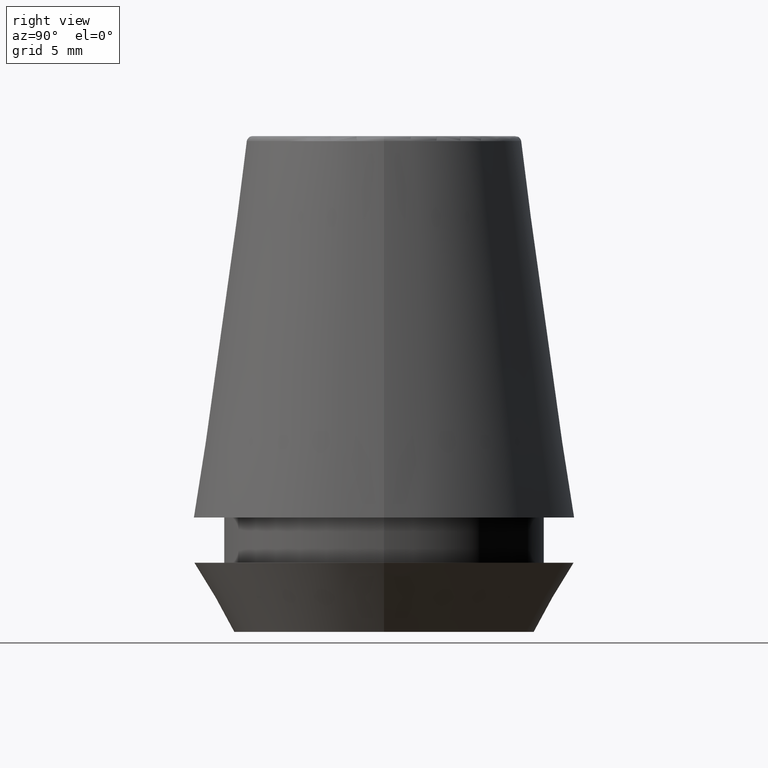
[diagram: clean part render]
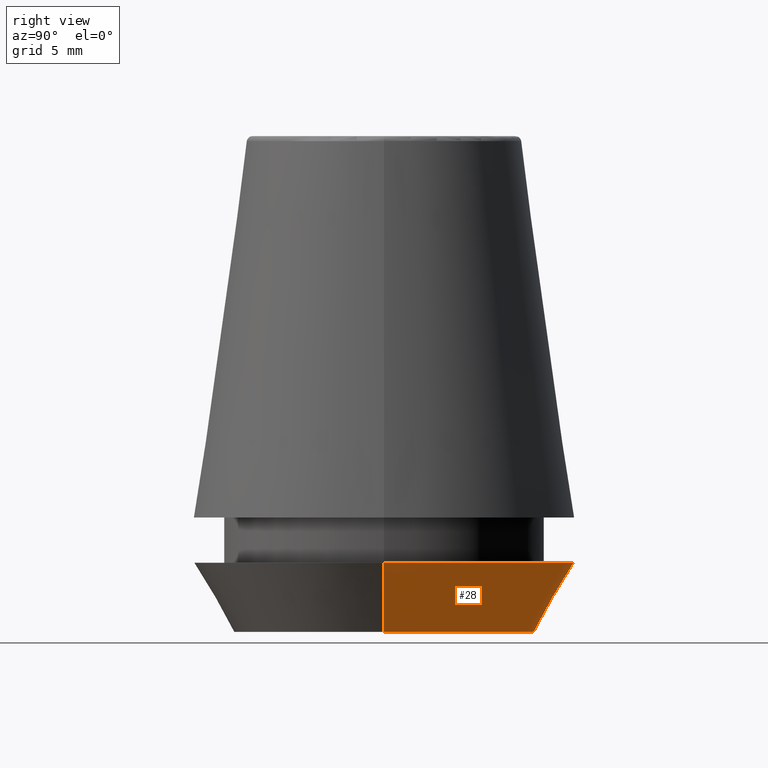
[diagram: same view with one face highlighted and labeled with its STEP entity id]
A machine part, right view. The second image highlights one B-rep face of the part: STEP entity #28.
In plain terms, the highlighted conical surface has half-angle 30 deg.
Its self-contained STEP definition (entity closure, byte-faithful):
#1 = CARTESIAN_POINT ( 'NONE',  ( -10.26217568973925200, 1.256754061072695800E-015, 0.0000000000000000000 ) ) ;
#6 = VERTEX_POINT ( 'NONE', #258 ) ;
#8 = LINE ( 'NONE', #23, #301 ) ;
#21 = CONICAL_SURFACE ( 'NONE', #262, 10.26217568973925200, 0.5235987755982940400 ) ;
#23 = CARTESIAN_POINT ( 'NONE',  ( 10.26217568973925200, 0.0000000000000000000, 0.0000000000000000000 ) ) ;
#28 = ADVANCED_FACE ( 'NONE', ( #367 ), #21, .T. ) ;
#41 = DIRECTION ( 'NONE',  ( 1.000000000000000000, 0.0000000000000000000, 0.0000000000000000000 ) ) ;
#45 = CARTESIAN_POINT ( 'NONE',  ( -10.26217568973925200, 1.424397449982127500E-015, 0.0000000000000000000 ) ) ;
#56 = AXIS2_PLACEMENT_3D ( 'NONE', #60, #351, #240 ) ;
#60 = CARTESIAN_POINT ( 'NONE',  ( 0.0000000000000000000, 0.0000000000000000000, 4.742050807568884500 ) ) ;
#68 = VERTEX_POINT ( 'NONE', #151 ) ;
#96 = DIRECTION ( 'NONE',  ( -0.4999999999999957800, 6.123233995736714300E-017, 0.8660254037844410400 ) ) ;
#99 = VERTEX_POINT ( 'NONE', #45 ) ;
#114 = DIRECTION ( 'NONE',  ( 1.000000000000000000, 0.0000000000000000000, 0.0000000000000000000 ) ) ;
#133 = ORIENTED_EDGE ( 'NONE', *, *, #302, .T. ) ;
#135 = VECTOR ( 'NONE', #96, 1000.000000000000200 ) ;
#151 = CARTESIAN_POINT ( 'NONE',  ( -13.00000000000000000, 1.592040838891559100E-015, 4.742050807568884500 ) ) ;
#161 = CARTESIAN_POINT ( 'NONE',  ( 10.26217568973925200, 0.0000000000000000000, 0.0000000000000000000 ) ) ;
#164 = DIRECTION ( 'NONE',  ( -0.0000000000000000000, -0.0000000000000000000, 1.000000000000000000 ) ) ;
#179 = EDGE_CURVE ( 'NONE', #218, #99, #321, .T. ) ;
#210 = LINE ( 'NONE', #1, #135 ) ;
#218 = VERTEX_POINT ( 'NONE', #161 ) ;
#219 = CIRCLE ( 'NONE', #56, 13.00000000000000000 ) ;
#235 = AXIS2_PLACEMENT_3D ( 'NONE', #332, #164, #41 ) ;
#240 = DIRECTION ( 'NONE',  ( 1.000000000000000000, 0.0000000000000000000, 0.0000000000000000000 ) ) ;
#254 = ORIENTED_EDGE ( 'NONE', *, *, #381, .F. ) ;
#258 = CARTESIAN_POINT ( 'NONE',  ( 13.00000000000000000, 0.0000000000000000000, 4.742050807568884500 ) ) ;
#262 = AXIS2_PLACEMENT_3D ( 'NONE', #269, #342, #114 ) ;
#269 = CARTESIAN_POINT ( 'NONE',  ( 0.0000000000000000000, 0.0000000000000000000, 0.0000000000000000000 ) ) ;
#301 = VECTOR ( 'NONE', #345, 1000.000000000000200 ) ;
#302 = EDGE_CURVE ( 'NONE', #99, #68, #210, .T. ) ;
#312 = EDGE_CURVE ( 'NONE', #6, #68, #219, .T. ) ;
#320 = ORIENTED_EDGE ( 'NONE', *, *, #179, .T. ) ;
#321 = CIRCLE ( 'NONE', #235, 10.26217568973925200 ) ;
#332 = CARTESIAN_POINT ( 'NONE',  ( 0.0000000000000000000, 0.0000000000000000000, 0.0000000000000000000 ) ) ;
#342 = DIRECTION ( 'NONE',  ( -0.0000000000000000000, -0.0000000000000000000, 1.000000000000000000 ) ) ;
#345 = DIRECTION ( 'NONE',  ( 0.4999999999999957800, 0.0000000000000000000, 0.8660254037844410400 ) ) ;
#347 = EDGE_LOOP ( 'NONE', ( #320, #133, #386, #254 ) ) ;
#351 = DIRECTION ( 'NONE',  ( -0.0000000000000000000, -0.0000000000000000000, 1.000000000000000000 ) ) ;
#367 = FACE_OUTER_BOUND ( 'NONE', #347, .T. ) ;
#381 = EDGE_CURVE ( 'NONE', #218, #6, #8, .T. ) ;
#386 = ORIENTED_EDGE ( 'NONE', *, *, #312, .F. ) ;